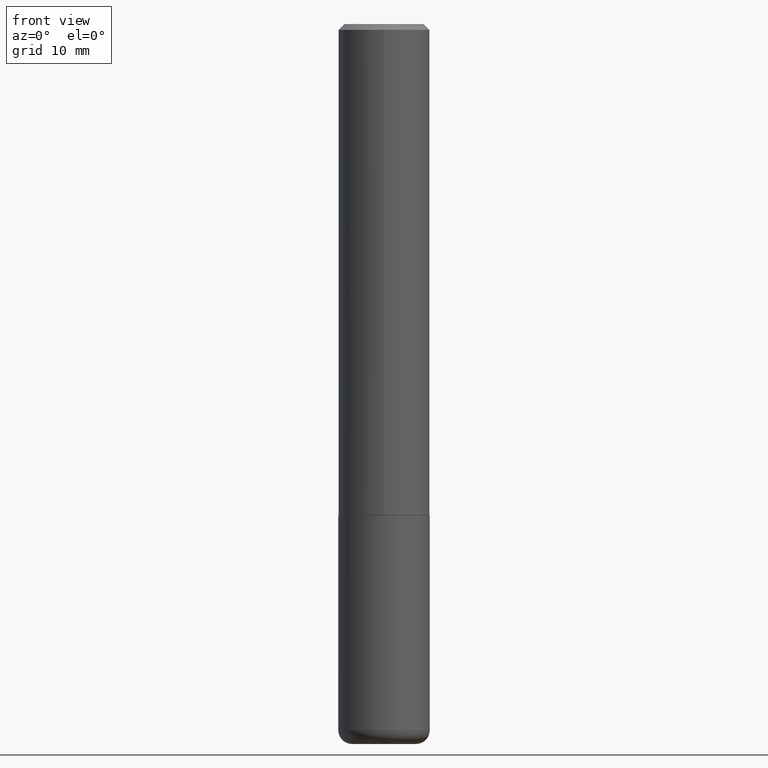
[diagram: clean part render]
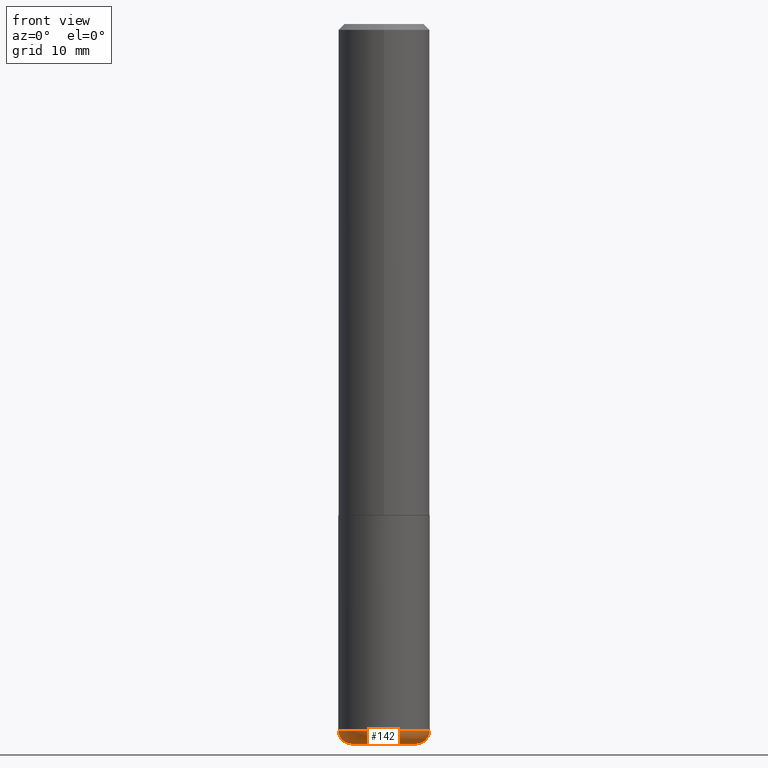
[diagram: same view with one face highlighted and labeled with its STEP entity id]
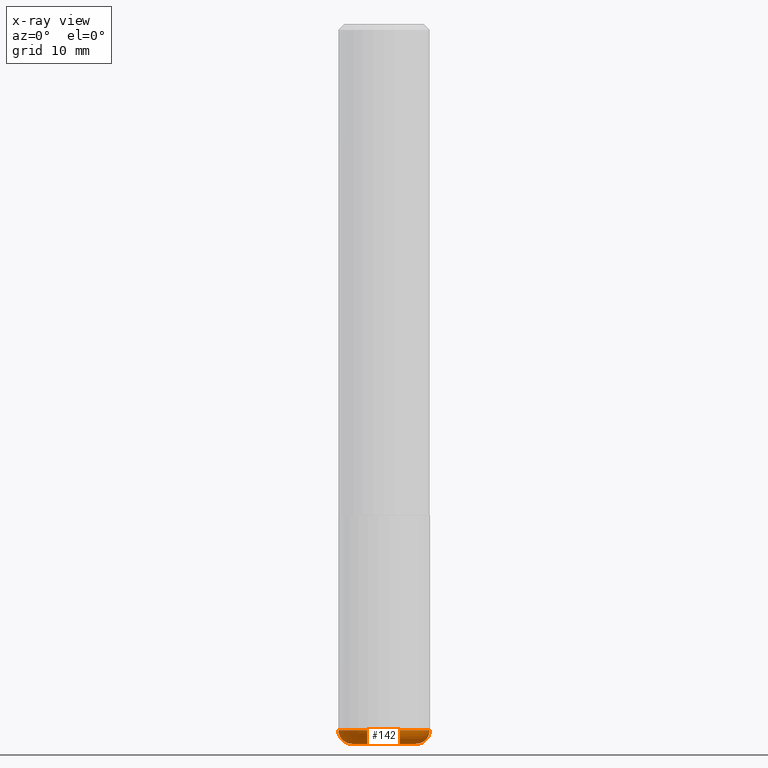
[diagram: x-ray of the same camera — body ghosted, the highlighted face saturated]
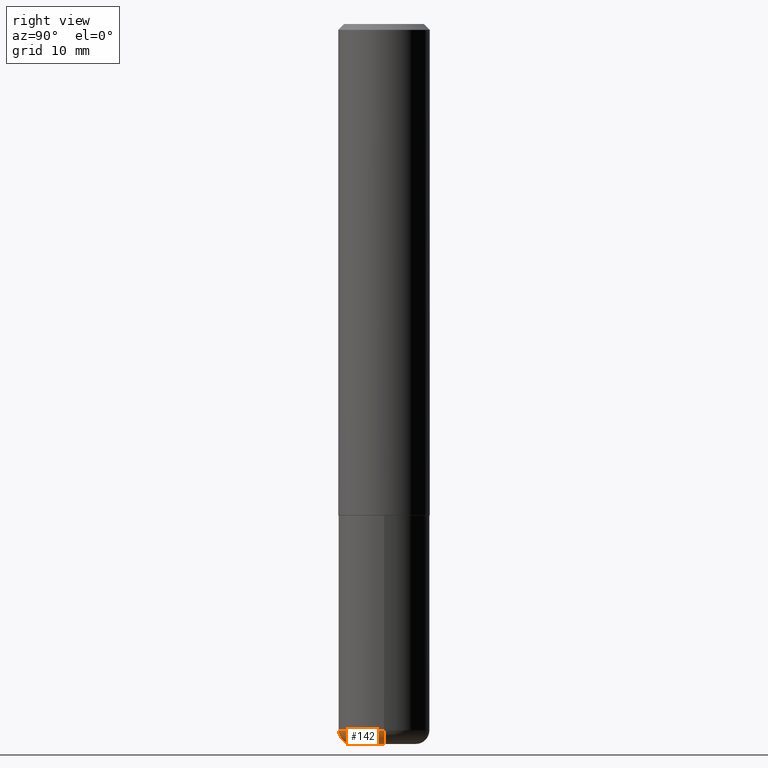
[diagram: same view with one face highlighted and labeled with its STEP entity id]
A machine part, front view. The second image highlights one B-rep face of the part: STEP entity #142.
The next image is the same camera in x-ray: the body ghosted, the highlighted face saturated — about 0% of this face is hidden behind the body in this view.
A second angle (right view) of the same face is appended — the face is thin or edge-on in the first view.
In plain terms, the highlighted toroidal blend (fillet) surface has major radius 2.8016 mm and minor (blend) radius 1.1989 mm.
Its self-contained STEP definition (entity closure, byte-faithful):
#16 = AXIS2_PLACEMENT_3D ( 'NONE', #331, #416, #164 ) ;
#32 = AXIS2_PLACEMENT_3D ( 'NONE', #235, #33, #241 ) ;
#33 = DIRECTION ( 'NONE',  ( -2.445468806185136597E-29, 3.491481338843145583E-15, 1.000000000000000000 ) ) ;
#35 = ORIENTED_EDGE ( 'NONE', *, *, #409, .F. ) ;
#48 = EDGE_CURVE ( 'NONE', #296, #305, #86, .T. ) ;
#50 = CARTESIAN_POINT ( 'NONE',  ( 0.1102999999999999814, -9.430141948081447954E-15, -2.480299999999999727 ) ) ;
#58 = CARTESIAN_POINT ( 'NONE',  ( 5.950070152329056268E-29, -8.495123245539259088E-15, -2.433100000000000485 ) ) ;
#86 = CIRCLE ( 'NONE', #257, 0.04719999999999970747 ) ;
#93 = FACE_OUTER_BOUND ( 'NONE', #278, .T. ) ;
#117 = CARTESIAN_POINT ( 'NONE',  ( 0.1102999999999999814, -9.265344028888053283E-15, -2.433100000000000485 ) ) ;
#128 = CARTESIAN_POINT ( 'NONE',  ( 0.1574999999999998346, -9.594939867274844201E-15, -2.433100000000000041 ) ) ;
#133 = DIRECTION ( 'NONE',  ( 1.000000000000000000, -6.982962677686270655E-15, 0.000000000000000000 ) ) ;
#142 = ADVANCED_FACE ( 'NONE', ( #93 ), #195, .T. ) ;
#144 = ORIENTED_EDGE ( 'NONE', *, *, #339, .F. ) ;
#151 = AXIS2_PLACEMENT_3D ( 'NONE', #198, #322, #133 ) ;
#155 = VERTEX_POINT ( 'NONE', #221 ) ;
#164 = DIRECTION ( 'NONE',  ( -1.000000000000000000, 7.105427357601001859E-15, 0.000000000000000000 ) ) ;
#195 = TOROIDAL_SURFACE ( 'NONE', #368, 0.1102999999999999814, 0.04719999999999970747 ) ;
#198 = CARTESIAN_POINT ( 'NONE',  ( 5.950070152329056268E-29, -8.495123245539257510E-15, -2.433100000000000041 ) ) ;
#215 = EDGE_CURVE ( 'NONE', #275, #296, #375, .T. ) ;
#221 = CARTESIAN_POINT ( 'NONE',  ( -0.1574999999999998346, -7.376018436717101484E-15, -2.433100000000000041 ) ) ;
#223 = DIRECTION ( 'NONE',  ( 1.000000000000000000, -6.982962677686263555E-15, 4.883557194083111780E-29 ) ) ;
#235 = CARTESIAN_POINT ( 'NONE',  ( 6.065496279980993634E-29, -8.659921164732653758E-15, -2.480299999999999727 ) ) ;
#241 = DIRECTION ( 'NONE',  ( 1.000000000000000000, -6.982962677686265133E-15, 0.000000000000000000 ) ) ;
#250 = CARTESIAN_POINT ( 'NONE',  ( -0.1102999999999999814, -7.626105481953182139E-15, -2.480299999999999727 ) ) ;
#257 = AXIS2_PLACEMENT_3D ( 'NONE', #117, #399, #340 ) ;
#260 = ORIENTED_EDGE ( 'NONE', *, *, #215, .T. ) ;
#275 = VERTEX_POINT ( 'NONE', #250 ) ;
#278 = EDGE_LOOP ( 'NONE', ( #144, #260, #415, #35 ) ) ;
#296 = VERTEX_POINT ( 'NONE', #50 ) ;
#305 = VERTEX_POINT ( 'NONE', #128 ) ;
#321 = DIRECTION ( 'NONE',  ( -2.445468806185136597E-29, 3.491481338843145583E-15, 1.000000000000000000 ) ) ;
#322 = DIRECTION ( 'NONE',  ( -2.445468806185136597E-29, 3.491481338843145583E-15, 1.000000000000000000 ) ) ;
#331 = CARTESIAN_POINT ( 'NONE',  ( -0.1102999999999999814, -7.711394607995868123E-15, -2.433100000000000485 ) ) ;
#339 = EDGE_CURVE ( 'NONE', #275, #155, #387, .T. ) ;
#340 = DIRECTION ( 'NONE',  ( 1.000000000000000000, -6.982962677686261189E-15, 0.000000000000000000 ) ) ;
#368 = AXIS2_PLACEMENT_3D ( 'NONE', #58, #321, #223 ) ;
#375 = CIRCLE ( 'NONE', #32, 0.1102999999999999814 ) ;
#387 = CIRCLE ( 'NONE', #16, 0.04719999999999970747 ) ;
#392 = CIRCLE ( 'NONE', #151, 0.1574999999999999456 ) ;
#399 = DIRECTION ( 'NONE',  ( -6.982962677686266711E-15, -1.000000000000000000, 3.491481338843145583E-15 ) ) ;
#409 = EDGE_CURVE ( 'NONE', #155, #305, #392, .T. ) ;
#415 = ORIENTED_EDGE ( 'NONE', *, *, #48, .T. ) ;
#416 = DIRECTION ( 'NONE',  ( 7.105427357601001859E-15, 1.000000000000000000, -3.491481338843145583E-15 ) ) ;